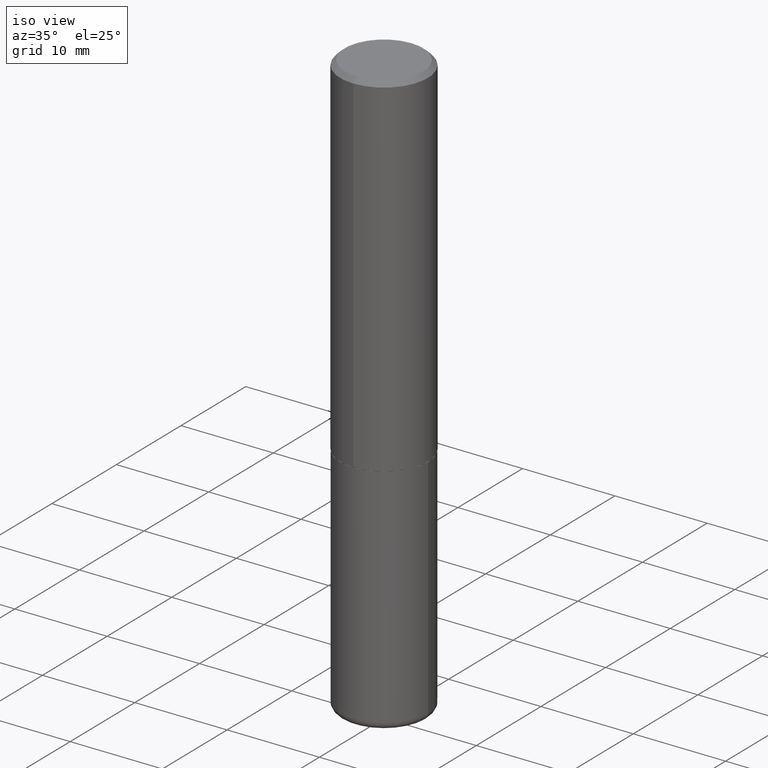
[diagram: clean part render]
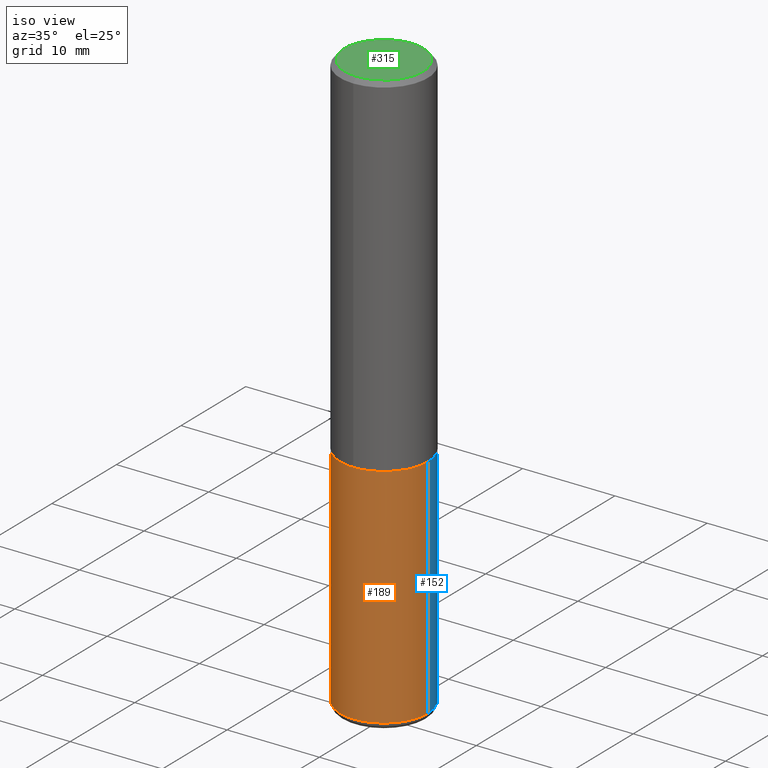
[diagram: same view with three faces highlighted in distinct colors, each labeled with its STEP entity id]
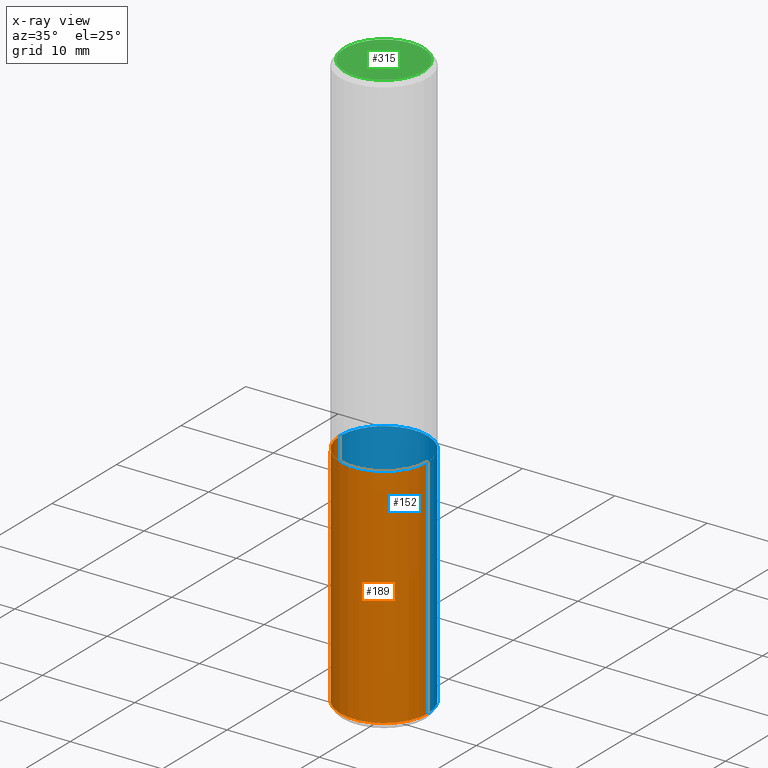
[diagram: x-ray of the same camera — body ghosted, the three highlighted faces saturated]
A machine part, iso view with three faces highlighted in distinct colors.
The next image is the same camera in x-ray (body ghosted, the three faces saturated) — at least one of them is partly hidden behind the body in this view.
Their STEP definitions:

[orange] entity #189 — the highlighted cylindrical surface (partial cylindrical patch) has radius 4.7625 mm, axis along (-0, 0, 1).
#26 = VERTEX_POINT ( 'NONE', #117 ) ;
#29 = VERTEX_POINT ( 'NONE', #235 ) ;
#40 = CARTESIAN_POINT ( 'NONE',  ( 0.1875000000000001943, -9.933264409008746581E-15, -2.470000000000000195 ) ) ;
#68 = AXIS2_PLACEMENT_3D ( 'NONE', #181, #177, #394 ) ;
#82 = CYLINDRICAL_SURFACE ( 'NONE', #264, 0.1875000000000000555 ) ;
#94 = CARTESIAN_POINT ( 'NONE',  ( 3.668203209277704895E-29, -5.237222008264718177E-15, -1.500000000000000222 ) ) ;
#107 = DIRECTION ( 'NONE',  ( -2.445468806185136877E-29, 3.491481338843145188E-15, 1.000000000000000000 ) ) ;
#111 = DIRECTION ( 'NONE',  ( -2.445468806185136877E-29, 3.491481338843145188E-15, 1.000000000000000000 ) ) ;
#112 = CARTESIAN_POINT ( 'NONE',  ( 0.000000000000000000, 0.000000000000000000, 0.000000000000000000 ) ) ;
#115 = DIRECTION ( 'NONE',  ( -2.445468806185136597E-29, 3.491481338843145583E-15, 1.000000000000000000 ) ) ;
#117 = CARTESIAN_POINT ( 'NONE',  ( -0.1875000000000000278, -5.598322828053456632E-15, -1.500000000000000222 ) ) ;
#130 = DIRECTION ( 'NONE',  ( 1.000000000000000000, -6.982962677686266711E-15, 0.000000000000000000 ) ) ;
#131 = ORIENTED_EDGE ( 'NONE', *, *, #346, .F. ) ;
#141 = CARTESIAN_POINT ( 'NONE',  ( -0.1875000000000001943, -7.291691277392382147E-15, -2.470000000000000195 ) ) ;
#148 = FACE_OUTER_BOUND ( 'NONE', #416, .T. ) ;
#159 = CIRCLE ( 'NONE', #265, 0.1875000000000000278 ) ;
#166 = EDGE_CURVE ( 'NONE', #227, #300, #198, .T. ) ;
#176 = VECTOR ( 'NONE', #111, 39.37007874015748143 ) ;
#177 = DIRECTION ( 'NONE',  ( -2.445468806185136597E-29, 3.491481338843145583E-15, 1.000000000000000000 ) ) ;
#181 = CARTESIAN_POINT ( 'NONE',  ( 6.040307951277287977E-29, -8.623958906942569995E-15, -2.470000000000000195 ) ) ;
#189 = ADVANCED_FACE ( 'NONE', ( #148 ), #82, .T. ) ;
#198 = CIRCLE ( 'NONE', #68, 0.1875000000000000555 ) ;
#227 = VERTEX_POINT ( 'NONE', #141 ) ;
#235 = CARTESIAN_POINT ( 'NONE',  ( 0.1875000000000000278, -6.546527510330893974E-15, -1.500000000000000222 ) ) ;
#243 = LINE ( 'NONE', #329, #359 ) ;
#264 = AXIS2_PLACEMENT_3D ( 'NONE', #112, #115, #362 ) ;
#265 = AXIS2_PLACEMENT_3D ( 'NONE', #94, #344, #130 ) ;
#267 = ORIENTED_EDGE ( 'NONE', *, *, #286, .F. ) ;
#286 = EDGE_CURVE ( 'NONE', #227, #26, #243, .T. ) ;
#295 = CARTESIAN_POINT ( 'NONE',  ( 0.1875000000000000555, -1.309305502066175205E-15, 9.142831454617382414E-30 ) ) ;
#300 = VERTEX_POINT ( 'NONE', #40 ) ;
#301 = LINE ( 'NONE', #295, #176 ) ;
#313 = ORIENTED_EDGE ( 'NONE', *, *, #166, .T. ) ;
#324 = ORIENTED_EDGE ( 'NONE', *, *, #373, .T. ) ;
#329 = CARTESIAN_POINT ( 'NONE',  ( -0.1875000000000000555, 1.332267629550188243E-15, -9.223003294227950793E-30 ) ) ;
#344 = DIRECTION ( 'NONE',  ( -2.445468806185136597E-29, 3.491481338843145583E-15, 1.000000000000000000 ) ) ;
#346 = EDGE_CURVE ( 'NONE', #26, #29, #159, .T. ) ;
#359 = VECTOR ( 'NONE', #107, 39.37007874015748143 ) ;
#362 = DIRECTION ( 'NONE',  ( 1.000000000000000000, -6.982962677686265922E-15, 4.876176775795935793E-29 ) ) ;
#373 = EDGE_CURVE ( 'NONE', #300, #29, #301, .T. ) ;
#394 = DIRECTION ( 'NONE',  ( 1.000000000000000000, -6.982962677686265922E-15, 0.000000000000000000 ) ) ;
#416 = EDGE_LOOP ( 'NONE', ( #267, #313, #324, #131 ) ) ;

[blue] entity #152 — the highlighted cylindrical surface (partial cylindrical patch) has radius 4.7625 mm, axis along (-0, 0, 1).
#26 = VERTEX_POINT ( 'NONE', #117 ) ;
#29 = VERTEX_POINT ( 'NONE', #235 ) ;
#40 = CARTESIAN_POINT ( 'NONE',  ( 0.1875000000000001943, -9.933264409008746581E-15, -2.470000000000000195 ) ) ;
#74 = DIRECTION ( 'NONE',  ( -2.445468806185136597E-29, 3.491481338843145583E-15, 1.000000000000000000 ) ) ;
#107 = DIRECTION ( 'NONE',  ( -2.445468806185136877E-29, 3.491481338843145188E-15, 1.000000000000000000 ) ) ;
#110 = DIRECTION ( 'NONE',  ( -2.445468806185136597E-29, 3.491481338843145583E-15, 1.000000000000000000 ) ) ;
#111 = DIRECTION ( 'NONE',  ( -2.445468806185136877E-29, 3.491481338843145188E-15, 1.000000000000000000 ) ) ;
#117 = CARTESIAN_POINT ( 'NONE',  ( -0.1875000000000000278, -5.598322828053456632E-15, -1.500000000000000222 ) ) ;
#120 = CARTESIAN_POINT ( 'NONE',  ( 0.000000000000000000, 0.000000000000000000, 0.000000000000000000 ) ) ;
#122 = DIRECTION ( 'NONE',  ( 1.000000000000000000, -6.982962677686266711E-15, 0.000000000000000000 ) ) ;
#133 = CIRCLE ( 'NONE', #281, 0.1875000000000000555 ) ;
#141 = CARTESIAN_POINT ( 'NONE',  ( -0.1875000000000001943, -7.291691277392382147E-15, -2.470000000000000195 ) ) ;
#152 = ADVANCED_FACE ( 'NONE', ( #303 ), #170, .T. ) ;
#170 = CYLINDRICAL_SURFACE ( 'NONE', #372, 0.1875000000000000555 ) ;
#176 = VECTOR ( 'NONE', #111, 39.37007874015748143 ) ;
#179 = CIRCLE ( 'NONE', #242, 0.1875000000000000278 ) ;
#211 = ORIENTED_EDGE ( 'NONE', *, *, #321, .F. ) ;
#227 = VERTEX_POINT ( 'NONE', #141 ) ;
#235 = CARTESIAN_POINT ( 'NONE',  ( 0.1875000000000000278, -6.546527510330893974E-15, -1.500000000000000222 ) ) ;
#242 = AXIS2_PLACEMENT_3D ( 'NONE', #332, #254, #122 ) ;
#243 = LINE ( 'NONE', #329, #359 ) ;
#254 = DIRECTION ( 'NONE',  ( -2.445468806185136597E-29, 3.491481338843145583E-15, 1.000000000000000000 ) ) ;
#260 = ORIENTED_EDGE ( 'NONE', *, *, #373, .F. ) ;
#271 = DIRECTION ( 'NONE',  ( 1.000000000000000000, -6.982962677686265922E-15, 4.876176775795935793E-29 ) ) ;
#272 = EDGE_CURVE ( 'NONE', #300, #227, #133, .T. ) ;
#281 = AXIS2_PLACEMENT_3D ( 'NONE', #333, #110, #388 ) ;
#286 = EDGE_CURVE ( 'NONE', #227, #26, #243, .T. ) ;
#295 = CARTESIAN_POINT ( 'NONE',  ( 0.1875000000000000555, -1.309305502066175205E-15, 9.142831454617382414E-30 ) ) ;
#297 = EDGE_LOOP ( 'NONE', ( #319, #322, #211, #260 ) ) ;
#300 = VERTEX_POINT ( 'NONE', #40 ) ;
#301 = LINE ( 'NONE', #295, #176 ) ;
#303 = FACE_OUTER_BOUND ( 'NONE', #297, .T. ) ;
#319 = ORIENTED_EDGE ( 'NONE', *, *, #272, .T. ) ;
#321 = EDGE_CURVE ( 'NONE', #29, #26, #179, .T. ) ;
#322 = ORIENTED_EDGE ( 'NONE', *, *, #286, .T. ) ;
#329 = CARTESIAN_POINT ( 'NONE',  ( -0.1875000000000000555, 1.332267629550188243E-15, -9.223003294227950793E-30 ) ) ;
#332 = CARTESIAN_POINT ( 'NONE',  ( 3.668203209277704895E-29, -5.237222008264718177E-15, -1.500000000000000222 ) ) ;
#333 = CARTESIAN_POINT ( 'NONE',  ( 6.040307951277287977E-29, -8.623958906942569995E-15, -2.470000000000000195 ) ) ;
#359 = VECTOR ( 'NONE', #107, 39.37007874015748143 ) ;
#372 = AXIS2_PLACEMENT_3D ( 'NONE', #120, #74, #271 ) ;
#373 = EDGE_CURVE ( 'NONE', #300, #29, #301, .T. ) ;
#388 = DIRECTION ( 'NONE',  ( 1.000000000000000000, -6.982962677686265922E-15, 0.000000000000000000 ) ) ;

[green] entity #315 — the highlighted planar face has unit normal (0, -0, -1).
#56 = EDGE_CURVE ( 'NONE', #142, #95, #185, .T. ) ;
#63 = CARTESIAN_POINT ( 'NONE',  ( 7.330148026253442751E-46, -1.046228534983812136E-31, -2.996979917857535013E-17 ) ) ;
#76 = FACE_OUTER_BOUND ( 'NONE', #380, .T. ) ;
#78 = EDGE_CURVE ( 'NONE', #95, #142, #99, .T. ) ;
#85 = DIRECTION ( 'NONE',  ( 2.445844892912588876E-29, -3.490942761243906423E-15, -1.000000000000000000 ) ) ;
#95 = VERTEX_POINT ( 'NONE', #311 ) ;
#99 = CIRCLE ( 'NONE', #207, 0.1675000000000000100 ) ;
#100 = AXIS2_PLACEMENT_3D ( 'NONE', #150, #85, #212 ) ;
#142 = VERTEX_POINT ( 'NONE', #163 ) ;
#150 = CARTESIAN_POINT ( 'NONE',  ( 1.169646248512449595E-15, 0.1675000000000000100, -5.997178120976420969E-16 ) ) ;
#157 = DIRECTION ( 'NONE',  ( -2.445844892912588876E-29, 3.490942761243906817E-15, 1.000000000000000000 ) ) ;
#163 = CARTESIAN_POINT ( 'NONE',  ( -1.217738394604446442E-15, -0.1675000000000000100, 5.547631133297791179E-16 ) ) ;
#169 = ORIENTED_EDGE ( 'NONE', *, *, #56, .T. ) ;
#182 = PLANE ( 'NONE',  #100 ) ;
#185 = CIRCLE ( 'NONE', #292, 0.1675000000000000100 ) ;
#207 = AXIS2_PLACEMENT_3D ( 'NONE', #282, #278, #223 ) ;
#212 = DIRECTION ( 'NONE',  ( 6.982962677686265922E-15, 1.000000000000000000, -3.490942761243906423E-15 ) ) ;
#223 = DIRECTION ( 'NONE',  ( -6.982962677686265922E-15, -1.000000000000000000, 3.490942761243906817E-15 ) ) ;
#278 = DIRECTION ( 'NONE',  ( -2.445844892912588876E-29, 3.490942761243906817E-15, 1.000000000000000000 ) ) ;
#282 = CARTESIAN_POINT ( 'NONE',  ( 7.330148026253442751E-46, -1.046228534983812136E-31, -2.996979917857535013E-17 ) ) ;
#284 = DIRECTION ( 'NONE',  ( -6.982962677686265922E-15, -1.000000000000000000, 3.490942761243906817E-15 ) ) ;
#292 = AXIS2_PLACEMENT_3D ( 'NONE', #63, #157, #284 ) ;
#311 = CARTESIAN_POINT ( 'NONE',  ( 1.239475875289312499E-15, 0.1675000000000000100, -6.147027116869298551E-16 ) ) ;
#315 = ADVANCED_FACE ( 'NONE', ( #76 ), #182, .F. ) ;
#379 = ORIENTED_EDGE ( 'NONE', *, *, #78, .T. ) ;
#380 = EDGE_LOOP ( 'NONE', ( #379, #169 ) ) ;